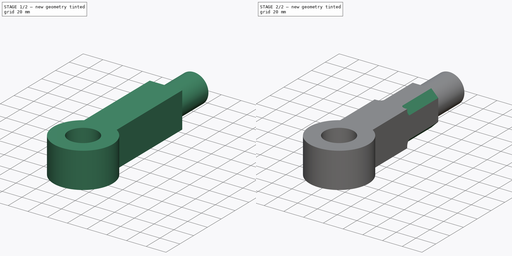
[diagram: build sequence overview — one tinted view per stage of 2, left to right]
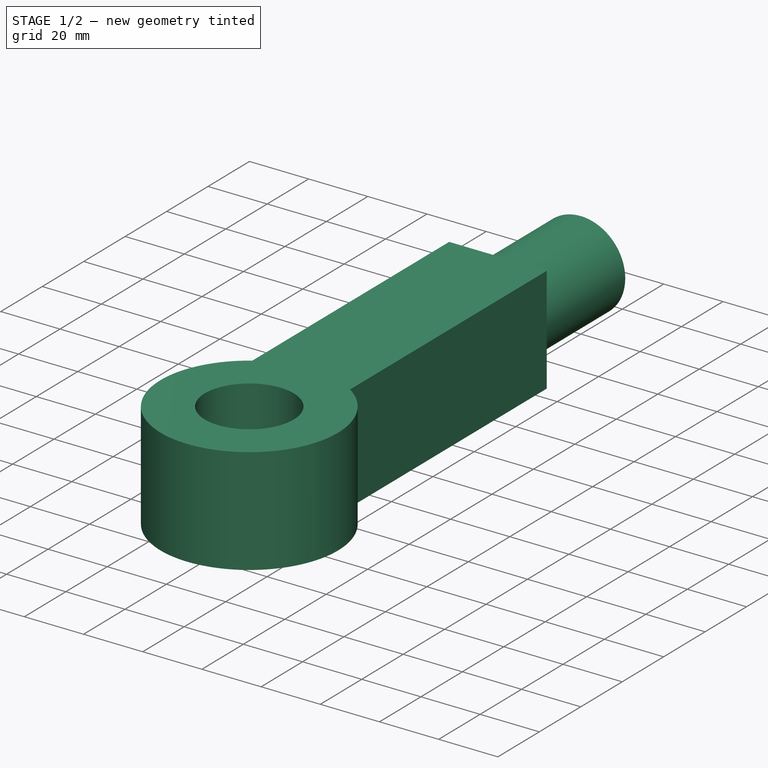
[diagram: stage 1 of 2 — iso view after this stage's code; geometry added in this stage tinted green]
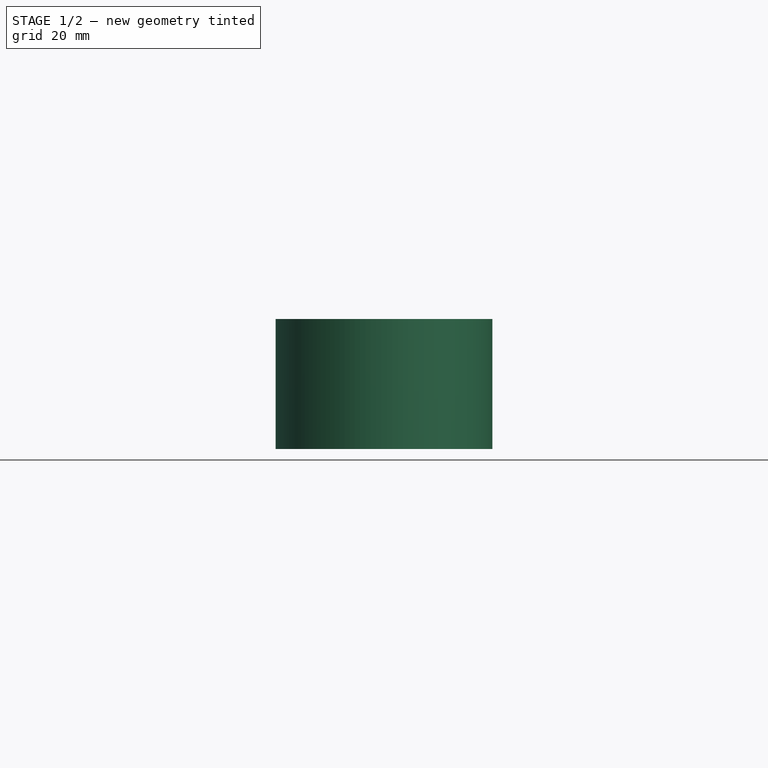
[diagram: stage 1 of 2 — front view after this stage's code; geometry added in this stage tinted green]
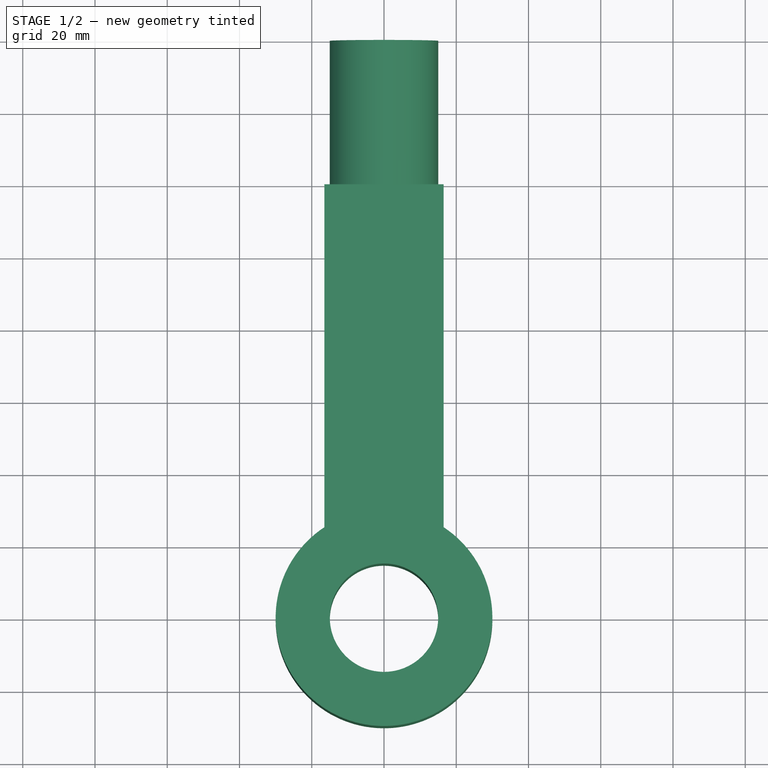
[diagram: stage 1 of 2 — top view after this stage's code; geometry added in this stage tinted green]
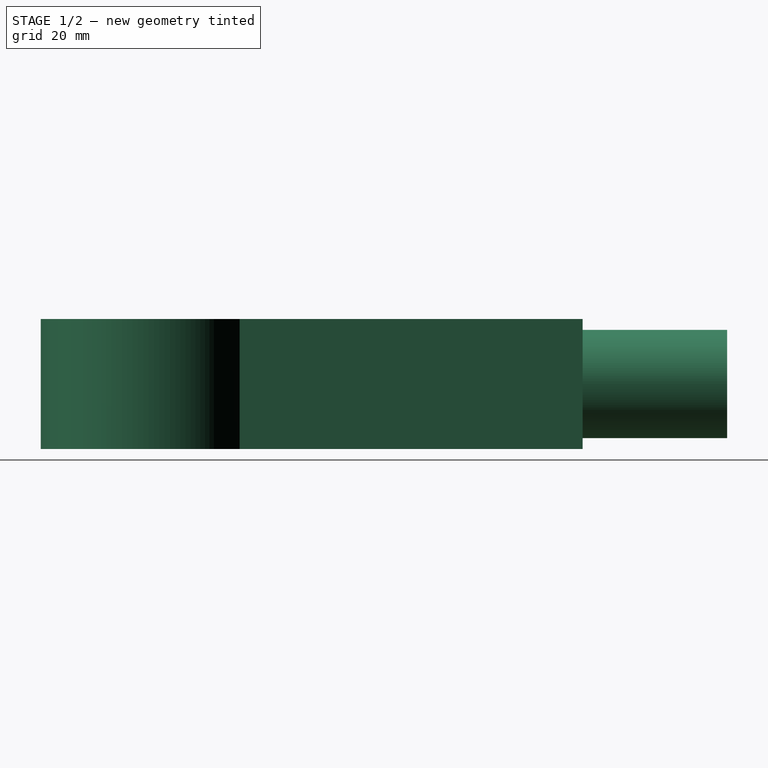
[diagram: stage 1 of 2 — right view after this stage's code; geometry added in this stage tinted green]
FCSTD DOCUMENT  (FreeCAD 1.0R39319 (Git))
Label: Eye End
License: All rights reserved
LicenseURL: https://en.wikipedia.org/wiki/All_rights_reserved
objects: Sketcher::SketchObject×4, PartDesign::Pad×2, PartDesign::Pocket×1, PartDesign::Fillet×1, PartDesign::Body×1
note: 21 computed .brp shape members not serialized (recipe doc carries the construction recipe); baked Part::Feature solids carry a one-line shape summary decoded from their .brp

FEATURE [Sketcher::SketchObject] Sketch
  ArcFitTolerance = 1e-06
  AttachmentSupport = -> [XY_Plane]
  FullyConstrained = true
  MakeInternals = false
  MapMode = 5
  sketch-geometry (7):
    g0: ArcOfCircle CenterX=0 CenterY=0 CenterZ=0 NormalX=0 NormalY=0 NormalZ=1 AngleXU=0 Radius=30 StartAngle=2.15316 EndAngle=7.27162
    g1: Circle CenterX=0 CenterY=0 CenterZ=0 NormalX=0 NormalY=0 NormalZ=1 AngleXU=0 Radius=15
    g2: LineSegment StartX=16.5 StartY=25.0549 StartZ=0 EndX=16.5 EndY=120 EndZ=0
    g3: LineSegment StartX=16.5 StartY=120 StartZ=0 EndX=-16.5 EndY=120 EndZ=0
    g4: LineSegment StartX=-16.5 StartY=120 StartZ=0 EndX=-16.5 EndY=25.0549 EndZ=0
    g5: GeomPoint [constr] X=0 Y=72.5275 Z=0
    g6: GeomPoint X=0 Y=-30 Z=0
  constraints (17):
    c: Coincident(g0,g-1)
    c: Coincident(g1,g0)
    c: Coincident(g2,g3)
    c: Coincident(g3,g4)
    c: Vertical(g2)
    c: Vertical(g4)
    c: Horizontal(g3)
    c: Symmetric(g4,g2,g5)
    c: PointOnObject(g5,g-2)
    c: Diameter(g0) = 60
    c: Diameter(g1) = 30
    c: Distance(g3,g3) = 33
    c: PointOnObject(g6,g0)
    c: Coincident(g0,g2)
    c: Coincident(g0,g4)
    c: PointOnObject(g6,g-2)
    c: Distance(g0,g3) = 120
FEATURE [PartDesign::Pad] Pad
  Direction = (0,0,1)
  Length = 35.98
  Length2 = 10
  Profile = -> Sketch
  ReferenceAxis = -> Sketch [N_Axis]
  Refine = true
  Suppressed = false
  Type = 0
FEATURE [Sketcher::SketchObject] Sketch001
  ArcFitTolerance = 1e-06
  AttachmentSupport = -> [Pad]
  ExternalGeometry = -> [Pad]
  FullyConstrained = true
  MakeInternals = false
  MapMode = 5
  Placement = pos=(0,120,0) rot=(0,0.707107,0.707107;3.14159rad)
  sketch-geometry (1):
    g0: Circle CenterX=-3.4e-15 CenterY=17.99 CenterZ=0 NormalX=0 NormalY=0 NormalZ=1 AngleXU=0 Radius=15
  constraints (2):
    c: Symmetric(g-4,g-3,g0)
    c: Diameter(g0) = 30
FEATURE [PartDesign::Pad] Pad001
  BaseFeature = -> Pad
  Direction = (0,1,-2e-16)
  Length = 40
  Length2 = 10
  Profile = -> Sketch001
  ReferenceAxis = -> Sketch001 [N_Axis]
  Refine = true
  Suppressed = false
  Type = 0
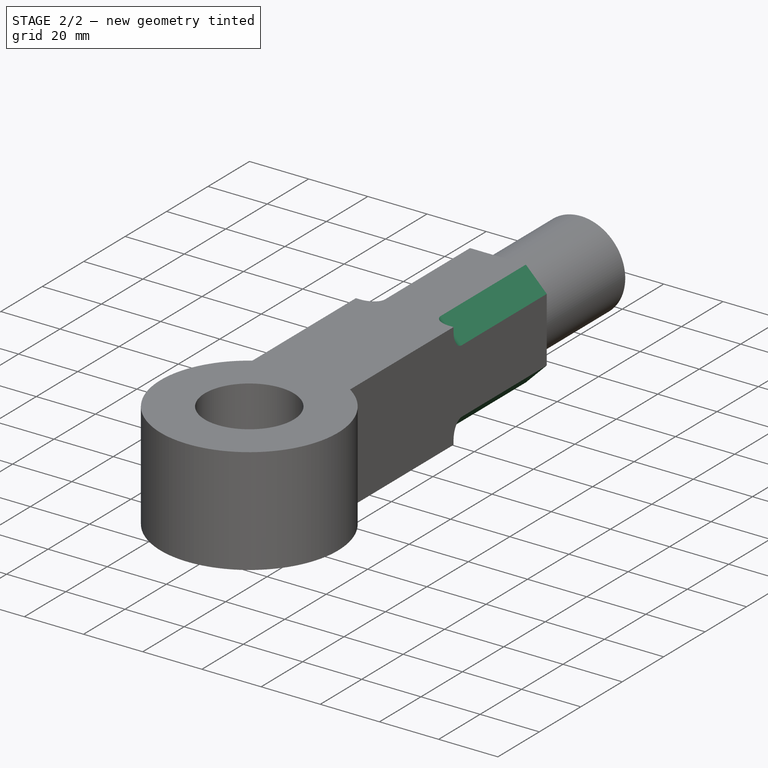
[diagram: stage 2 of 2 — iso view after this stage's code; geometry added in this stage tinted green]
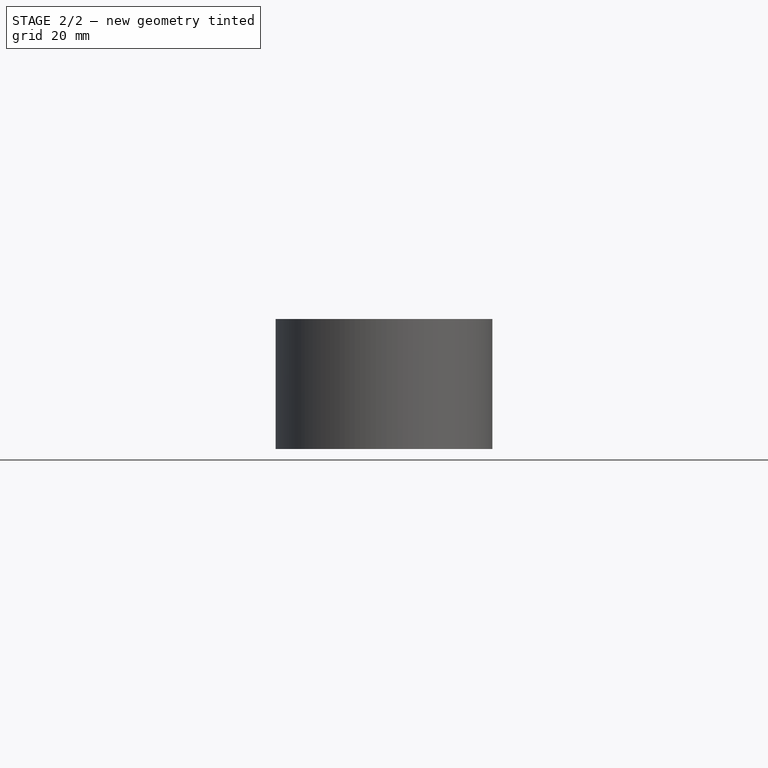
[diagram: stage 2 of 2 — front view after this stage's code; geometry added in this stage tinted green]
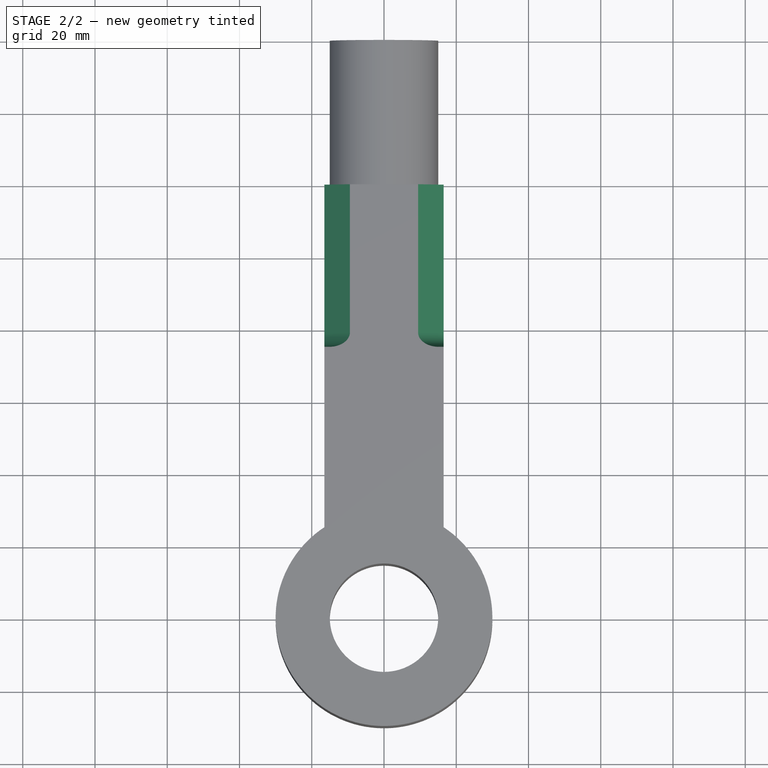
[diagram: stage 2 of 2 — top view after this stage's code; geometry added in this stage tinted green]
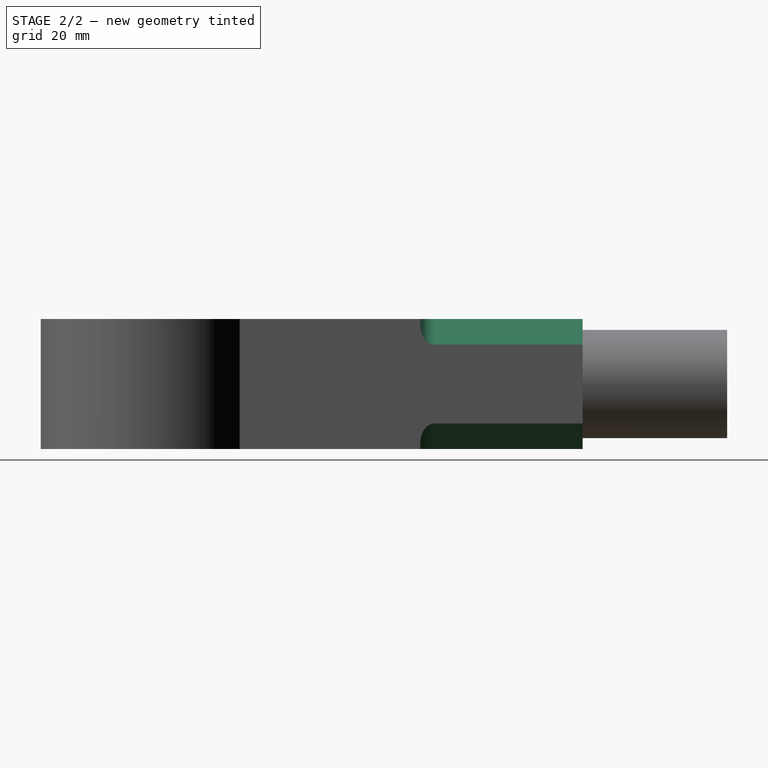
[diagram: stage 2 of 2 — right view after this stage's code; geometry added in this stage tinted green]
FEATURE [Sketcher::SketchObject] Sketch002
  ArcFitTolerance = 1e-06
  AttachmentSupport = -> [Pad001]
  ExternalGeometry = -> [Pad001]
  FullyConstrained = true
  MakeInternals = false
  MapMode = 5
  Placement = pos=(0,120,0) rot=(0,0.707107,0.707107;3.14159rad)
  sketch-geometry (12):
    g0: LineSegment StartX=-16.5 StartY=35.98 StartZ=0 EndX=-16.5 EndY=28.9089 EndZ=0
    g1: LineSegment StartX=-16.5 StartY=28.9089 StartZ=0 EndX=-9.42893 EndY=35.98 EndZ=0
    g2: LineSegment StartX=-9.42893 StartY=35.98 StartZ=0 EndX=-16.5 EndY=35.98 EndZ=0
    g3: LineSegment StartX=16.5 StartY=35.98 StartZ=0 EndX=16.5 EndY=28.9089 EndZ=0
    g4: LineSegment StartX=16.5 StartY=28.9089 StartZ=0 EndX=9.42893 EndY=35.98 EndZ=0
    g5: LineSegment StartX=9.42893 StartY=35.98 StartZ=0 EndX=16.5 EndY=35.98 EndZ=0
    g6: LineSegment StartX=16.5 StartY=0 StartZ=0 EndX=9.42893 EndY=0 EndZ=0
    g7: LineSegment StartX=9.42893 StartY=0 StartZ=0 EndX=16.5 EndY=7.07107 EndZ=0
    g8: LineSegment StartX=16.5 StartY=7.07107 StartZ=0 EndX=16.5 EndY=0 EndZ=0
    g9: LineSegment StartX=-16.5 StartY=0 StartZ=0 EndX=-9.42893 EndY=0 EndZ=0
    g10: LineSegment StartX=-9.42893 StartY=0 StartZ=0 EndX=-16.5 EndY=7.07107 EndZ=0
    g11: LineSegment StartX=-16.5 StartY=7.07107 StartZ=0 EndX=-16.5 EndY=0 EndZ=0
  constraints (32):
    c: Coincident(g0,g-4)
    c: PointOnObject(g0,g-4)
    c: Coincident(g1,g0)
    c: PointOnObject(g1,g-3)
    c: Coincident(g2,g0)
    c: Coincident(g1,g2)
    c: Equal(g2,g0)
    c: Distance(g1,g1) = 10
    c: Coincident(g-5,g3)
    c: PointOnObject(g3,g-5)
    c: Coincident(g3,g4)
    c: PointOnObject(g4,g-3)
    c: Coincident(g4,g5)
    c: Coincident(g5,g3)
    c: Coincident(g-6,g6)
    c: PointOnObject(g6,g-6)
    c: Coincident(g6,g7)
    c: PointOnObject(g7,g-5)
    c: Coincident(g7,g8)
    c: Coincident(g8,g6)
    c: Coincident(g-6,g9)
    c: PointOnObject(g9,g-6)
    c: Coincident(g9,g10)
    c: PointOnObject(g10,g-4)
    c: Coincident(g10,g11)
    c: Coincident(g11,g9)
    c: Equal(g5,g3)
    c: Equal(g6,g8)
    c: Equal(g9,g11)
    c: Distance(g4,g4) = 10
    c: Distance(g7,g7) = 10
    c: Distance(g10,g10) = 10
FEATURE [PartDesign::Pocket] Pocket
  BaseFeature = -> Pad001
  Direction = (0,-1,2e-16)
  Length = 45
  Length2 = 5
  Profile = -> Sketch002
  ReferenceAxis = -> Sketch002 [N_Axis]
  Refine = true
  Suppressed = false
  Type = 0
FEATURE [PartDesign::Fillet] Fillet
  Base = -> Pocket [Edge32,Edge33,Edge39,Edge38]
  BaseFeature = -> Pocket
  Radius = 4
  Refine = true
  SupportTransform = false
  Suppressed = false
  UseAllEdges = false
FEATURE [Sketcher::SketchObject] Sketch003
  ArcFitTolerance = 1e-06
  AttachmentSupport = -> [Fillet]
  FullyConstrained = true
  MakeInternals = false
  MapMode = 5
  Placement = pos=(0,120,0) rot=(0,0.707107,0.707107;3.14159rad)
FEATURE [PartDesign::Body] Body  label="Single Eye"
  AllowCompound = false
  Group = -> [Sketch,Pad,Sketch001,Pad001,Sketch002,Pocket,Fillet,Sketch003]
  Origin = -> Origin
  Tip = -> Fillet
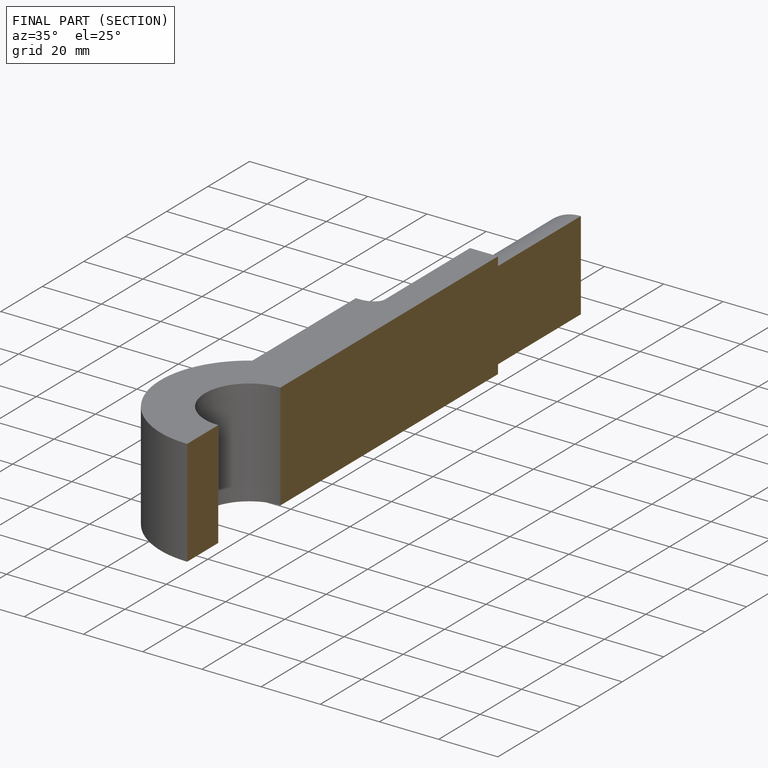
[diagram: finished part — half-section view (interior)]
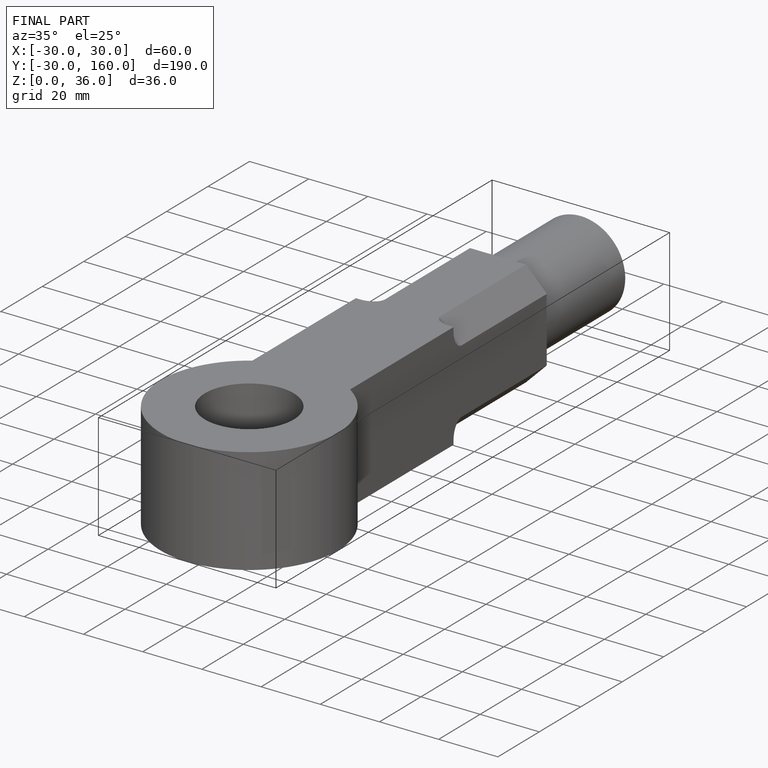
[diagram: finished part — iso view with bounding-box wireframe]
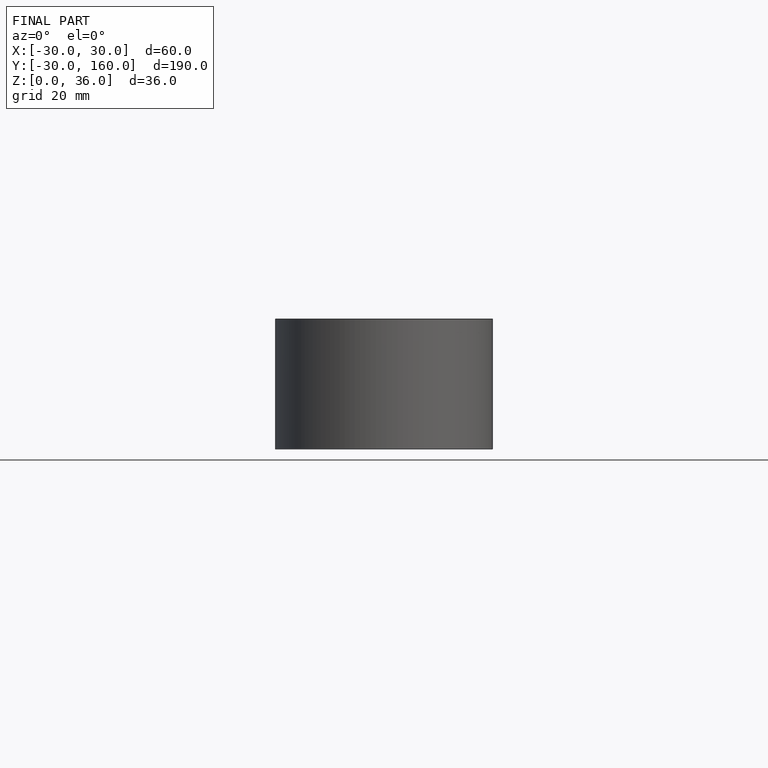
[diagram: finished part — front view with bounding-box wireframe]
